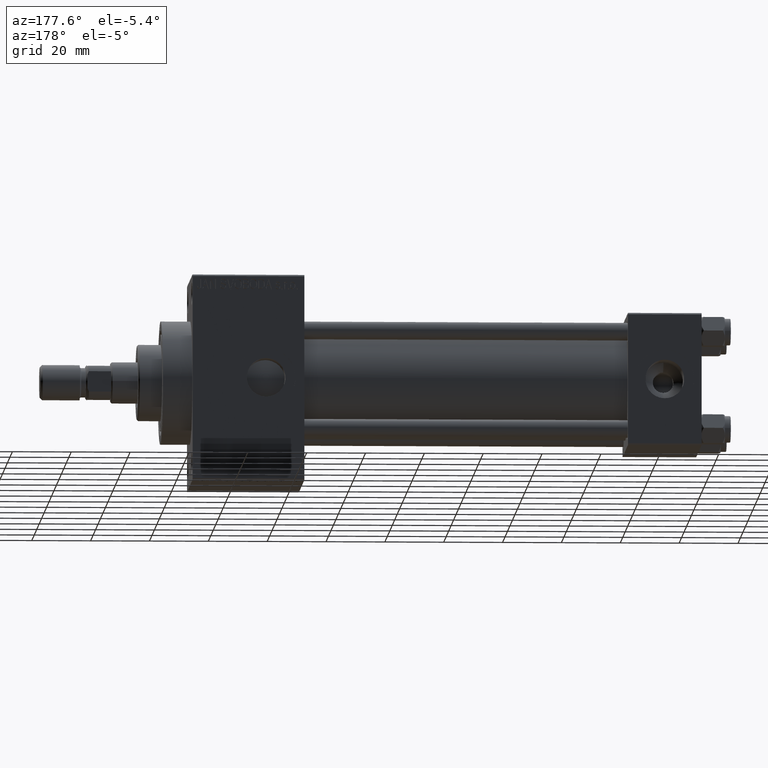
[diagram: clean part render]
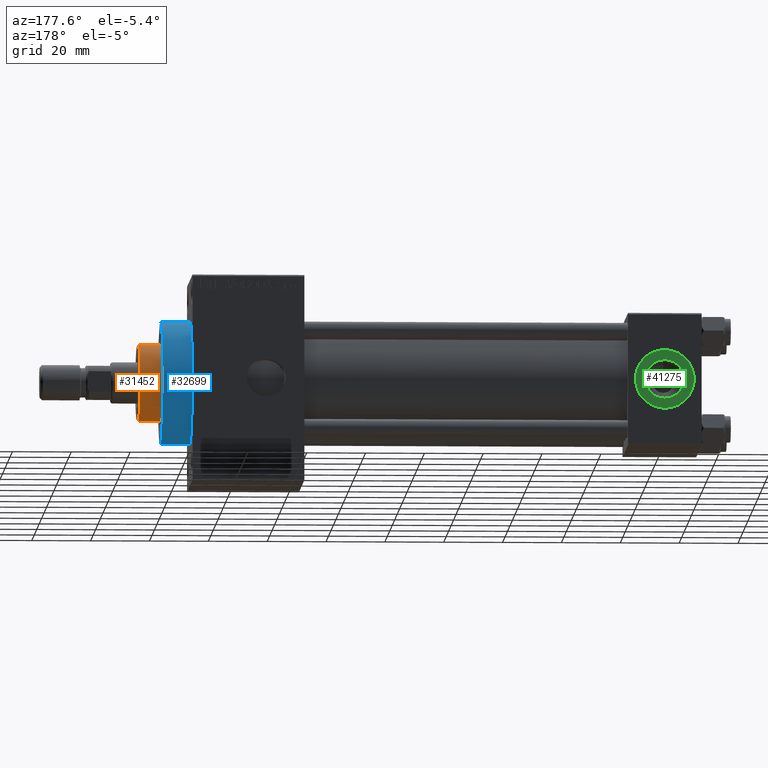
[diagram: same view with three faces highlighted in distinct colors, each labeled with its STEP entity id]
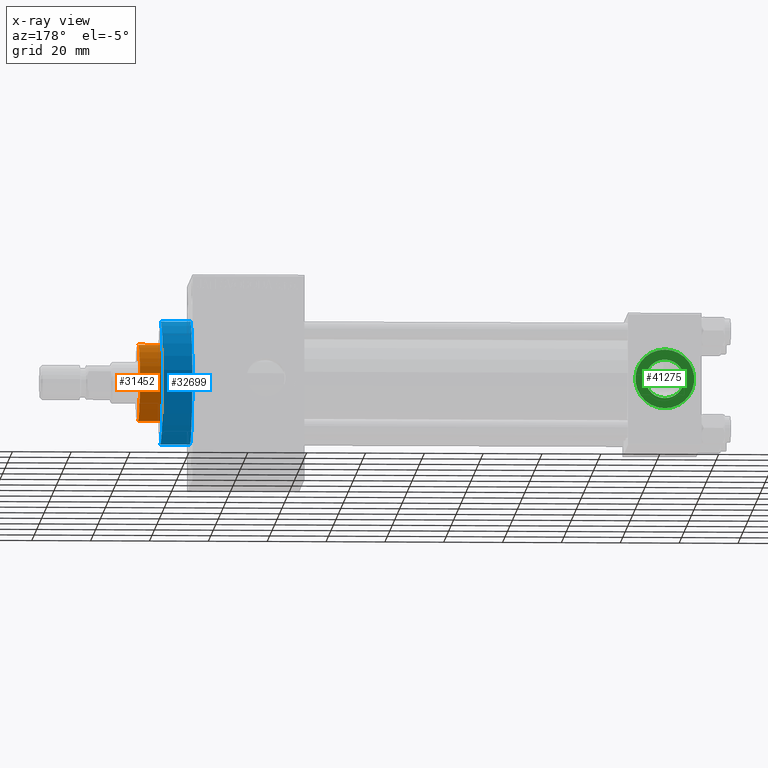
[diagram: x-ray of the same camera — body ghosted, the three highlighted faces saturated]
A machine part, auxiliary view with three faces highlighted in distinct colors.
The next image is the same camera in x-ray (body ghosted, the three faces saturated) — at least one of them is partly hidden behind the body in this view.
Their STEP definitions:

[orange] entity #31452 — the highlighted cylindrical surface (partial cylindrical patch) has radius 13 mm, axis along (-1, 0, 0).
#1485 = LINE ( 'NONE', #35322, #17861 ) ;
#4334 = CARTESIAN_POINT ( 'NONE',  ( 13.00000000000000178, 1.592040838891559293E-15, 51.25999999999999801 ) ) ;
#4751 = AXIS2_PLACEMENT_3D ( 'NONE', #12303, #26810, #42270 ) ;
#4958 = DIRECTION ( 'NONE',  ( -0.000000000000000000, -0.000000000000000000, -1.000000000000000000 ) ) ;
#7844 = EDGE_CURVE ( 'NONE', #42689, #37388, #12053, .T. ) ;
#8588 = DIRECTION ( 'NONE',  ( -1.000000000000000000, 0.000000000000000000, 0.000000000000000000 ) ) ;
#10431 = VERTEX_POINT ( 'NONE', #19446 ) ;
#12053 = LINE ( 'NONE', #4334, #17579 ) ;
#12303 = CARTESIAN_POINT ( 'NONE',  ( 0.000000000000000000, 0.000000000000000000, 50.75999999999997669 ) ) ;
#12323 = EDGE_CURVE ( 'NONE', #10431, #47130, #1485, .T. ) ;
#12366 = ORIENTED_EDGE ( 'NONE', *, *, #12597, .T. ) ;
#12597 = EDGE_CURVE ( 'NONE', #42689, #10431, #15562, .T. ) ;
#13092 = AXIS2_PLACEMENT_3D ( 'NONE', #13095, #46222, #27841 ) ;
#13095 = CARTESIAN_POINT ( 'NONE',  ( 0.000000000000000000, 0.000000000000000000, 43.25999999999999801 ) ) ;
#15562 = CIRCLE ( 'NONE', #4751, 13.00000000000000178 ) ;
#17579 = VECTOR ( 'NONE', #34070, 1000.000000000000000 ) ;
#17861 = VECTOR ( 'NONE', #27821, 1000.000000000000000 ) ;
#18301 = ORIENTED_EDGE ( 'NONE', *, *, #7844, .F. ) ;
#18989 = CARTESIAN_POINT ( 'NONE',  ( 0.000000000000000000, 0.000000000000000000, 51.25999999999999801 ) ) ;
#19446 = CARTESIAN_POINT ( 'NONE',  ( -13.00000000000000178, 0.000000000000000000, 50.75999999999997669 ) ) ;
#24182 = CARTESIAN_POINT ( 'NONE',  ( 13.00000000000000178, 1.592040838891559293E-15, 43.25999999999999801 ) ) ;
#25142 = ORIENTED_EDGE ( 'NONE', *, *, #30733, .T. ) ;
#25770 = CARTESIAN_POINT ( 'NONE',  ( -13.00000000000000178, 0.000000000000000000, 43.25999999999999801 ) ) ;
#26810 = DIRECTION ( 'NONE',  ( 0.000000000000000000, 0.000000000000000000, -1.000000000000000000 ) ) ;
#27821 = DIRECTION ( 'NONE',  ( -0.000000000000000000, -0.000000000000000000, -1.000000000000000000 ) ) ;
#27841 = DIRECTION ( 'NONE',  ( 1.000000000000000000, 0.000000000000000000, 0.000000000000000000 ) ) ;
#29710 = EDGE_LOOP ( 'NONE', ( #18301, #12366, #46624, #25142 ) ) ;
#30733 = EDGE_CURVE ( 'NONE', #47130, #37388, #34703, .T. ) ;
#31452 = ADVANCED_FACE ( 'NONE', ( #41473 ), #41709, .T. ) ;
#34070 = DIRECTION ( 'NONE',  ( -0.000000000000000000, -0.000000000000000000, -1.000000000000000000 ) ) ;
#34703 = CIRCLE ( 'NONE', #13092, 13.00000000000000178 ) ;
#35322 = CARTESIAN_POINT ( 'NONE',  ( -13.00000000000000178, 0.000000000000000000, 51.25999999999999801 ) ) ;
#35506 = AXIS2_PLACEMENT_3D ( 'NONE', #18989, #4958, #8588 ) ;
#35850 = CARTESIAN_POINT ( 'NONE',  ( 13.00000000000000178, 1.592040838891559293E-15, 50.75999999999997669 ) ) ;
#37388 = VERTEX_POINT ( 'NONE', #24182 ) ;
#41473 = FACE_OUTER_BOUND ( 'NONE', #29710, .T. ) ;
#41709 = CYLINDRICAL_SURFACE ( 'NONE', #35506, 13.00000000000000178 ) ;
#42270 = DIRECTION ( 'NONE',  ( 1.000000000000000000, 0.000000000000000000, 0.000000000000000000 ) ) ;
#42689 = VERTEX_POINT ( 'NONE', #35850 ) ;
#46222 = DIRECTION ( 'NONE',  ( 0.000000000000000000, 0.000000000000000000, 1.000000000000000000 ) ) ;
#46624 = ORIENTED_EDGE ( 'NONE', *, *, #12323, .T. ) ;
#47130 = VERTEX_POINT ( 'NONE', #25770 ) ;

[blue] entity #32699 — the highlighted cylindrical surface (partial cylindrical patch) has radius 21 mm, axis along (-1, -0, -0).
#147 = EDGE_CURVE ( 'NONE', #37056, #34471, #30588, .T. ) ;
#369 = CARTESIAN_POINT ( 'NONE',  ( 183.0000000000000284, 0.000000000000000000, 0.000000000000000000 ) ) ;
#446 = DIRECTION ( 'NONE',  ( 1.000000000000000000, 0.000000000000000000, 0.000000000000000000 ) ) ;
#1401 = DIRECTION ( 'NONE',  ( -1.000000000000000000, -0.000000000000000000, -0.000000000000000000 ) ) ;
#2301 = EDGE_CURVE ( 'NONE', #27537, #37016, #35280, .T. ) ;
#6101 = LINE ( 'NONE', #16984, #44452 ) ;
#9637 = ORIENTED_EDGE ( 'NONE', *, *, #19905, .T. ) ;
#12536 = EDGE_LOOP ( 'NONE', ( #14985, #9637, #38747, #25741 ) ) ;
#14049 = DIRECTION ( 'NONE',  ( 0.000000000000000000, 0.000000000000000000, -1.000000000000000000 ) ) ;
#14985 = ORIENTED_EDGE ( 'NONE', *, *, #2301, .F. ) ;
#16750 = AXIS2_PLACEMENT_3D ( 'NONE', #18143, #25154, #14049 ) ;
#16984 = CARTESIAN_POINT ( 'NONE',  ( 183.0000000000000284, 2.571758278209441661E-15, -21.00000000000000000 ) ) ;
#18143 = CARTESIAN_POINT ( 'NONE',  ( 183.0000000000000284, 0.000000000000000000, 0.000000000000000000 ) ) ;
#19905 = EDGE_CURVE ( 'NONE', #27537, #37056, #6101, .T. ) ;
#20760 = AXIS2_PLACEMENT_3D ( 'NONE', #369, #26239, #25274 ) ;
#21950 = CARTESIAN_POINT ( 'NONE',  ( 173.0000000000000284, 0.000000000000000000, 21.00000000000000000 ) ) ;
#22106 = CARTESIAN_POINT ( 'NONE',  ( 183.0000000000000284, 0.000000000000000000, 21.00000000000000000 ) ) ;
#22445 = CARTESIAN_POINT ( 'NONE',  ( 173.0000000000000284, 0.000000000000000000, 0.000000000000000000 ) ) ;
#25154 = DIRECTION ( 'NONE',  ( 1.000000000000000000, 0.000000000000000000, 0.000000000000000000 ) ) ;
#25274 = DIRECTION ( 'NONE',  ( 0.000000000000000000, 0.000000000000000000, 1.000000000000000000 ) ) ;
#25741 = ORIENTED_EDGE ( 'NONE', *, *, #26670, .F. ) ;
#26239 = DIRECTION ( 'NONE',  ( -1.000000000000000000, -0.000000000000000000, -0.000000000000000000 ) ) ;
#26670 = EDGE_CURVE ( 'NONE', #37016, #34471, #38138, .T. ) ;
#27537 = VERTEX_POINT ( 'NONE', #36796 ) ;
#29839 = AXIS2_PLACEMENT_3D ( 'NONE', #22445, #446, #37425 ) ;
#30547 = CARTESIAN_POINT ( 'NONE',  ( 173.0000000000000284, 2.571758278209441661E-15, -21.00000000000000000 ) ) ;
#30588 = CIRCLE ( 'NONE', #29839, 21.00000000000000000 ) ;
#31533 = VECTOR ( 'NONE', #1401, 1000.000000000000000 ) ;
#31613 = CARTESIAN_POINT ( 'NONE',  ( 183.0000000000000284, 0.000000000000000000, 21.00000000000000000 ) ) ;
#31726 = DIRECTION ( 'NONE',  ( -1.000000000000000000, -0.000000000000000000, -0.000000000000000000 ) ) ;
#32699 = ADVANCED_FACE ( 'NONE', ( #43900 ), #37354, .T. ) ;
#34471 = VERTEX_POINT ( 'NONE', #21950 ) ;
#35280 = CIRCLE ( 'NONE', #16750, 21.00000000000000000 ) ;
#36796 = CARTESIAN_POINT ( 'NONE',  ( 183.0000000000000284, 2.571758278209441661E-15, -21.00000000000000000 ) ) ;
#37016 = VERTEX_POINT ( 'NONE', #22106 ) ;
#37056 = VERTEX_POINT ( 'NONE', #30547 ) ;
#37354 = CYLINDRICAL_SURFACE ( 'NONE', #20760, 21.00000000000000000 ) ;
#37425 = DIRECTION ( 'NONE',  ( 0.000000000000000000, 0.000000000000000000, -1.000000000000000000 ) ) ;
#38138 = LINE ( 'NONE', #31613, #31533 ) ;
#38747 = ORIENTED_EDGE ( 'NONE', *, *, #147, .T. ) ;
#43900 = FACE_OUTER_BOUND ( 'NONE', #12536, .T. ) ;
#44452 = VECTOR ( 'NONE', #31726, 1000.000000000000000 ) ;

[green] entity #41275 — the highlighted planar face has unit normal (0, 1, 0).
#961 = EDGE_LOOP ( 'NONE', ( #9779, #31208 ) ) ;
#4906 = EDGE_CURVE ( 'NONE', #18008, #25945, #6815, .T. ) ;
#5674 = CARTESIAN_POINT ( 'NONE',  ( 12.50000000000000000, 22.30000000000000071, 6.579999999999998295 ) ) ;
#6143 = ORIENTED_EDGE ( 'NONE', *, *, #35860, .F. ) ;
#6695 = DIRECTION ( 'NONE',  ( 0.000000000000000000, 1.000000000000000000, 0.000000000000000000 ) ) ;
#6815 = CIRCLE ( 'NONE', #25307, 9.999999999999996447 ) ;
#7683 = EDGE_CURVE ( 'NONE', #27487, #34872, #37660, .T. ) ;
#8744 = CIRCLE ( 'NONE', #33475, 9.999999999999996447 ) ;
#9779 = ORIENTED_EDGE ( 'NONE', *, *, #42859, .T. ) ;
#9809 = PLANE ( 'NONE',  #43427 ) ;
#10390 = DIRECTION ( 'NONE',  ( 0.000000000000000000, 1.000000000000000000, 0.000000000000000000 ) ) ;
#10456 = CARTESIAN_POINT ( 'NONE',  ( 12.50000000000000000, 22.30000000000000071, -6.579999999999998295 ) ) ;
#12242 = DIRECTION ( 'NONE',  ( 0.000000000000000000, 0.000000000000000000, 1.000000000000000000 ) ) ;
#16814 = DIRECTION ( 'NONE',  ( 0.000000000000000000, 1.000000000000000000, 0.000000000000000000 ) ) ;
#16816 = AXIS2_PLACEMENT_3D ( 'NONE', #39897, #10390, #32639 ) ;
#18008 = VERTEX_POINT ( 'NONE', #22139 ) ;
#18125 = DIRECTION ( 'NONE',  ( 0.000000000000000000, 0.000000000000000000, 1.000000000000000000 ) ) ;
#20684 = FACE_BOUND ( 'NONE', #44282, .T. ) ;
#21896 = CARTESIAN_POINT ( 'NONE',  ( 12.50000000000000000, 22.30000000000000071, 9.999999999999996447 ) ) ;
#22139 = CARTESIAN_POINT ( 'NONE',  ( 12.50000000000000178, 22.30000000000000071, -9.999999999999996447 ) ) ;
#25307 = AXIS2_PLACEMENT_3D ( 'NONE', #41738, #41043, #12242 ) ;
#25945 = VERTEX_POINT ( 'NONE', #21896 ) ;
#27487 = VERTEX_POINT ( 'NONE', #10456 ) ;
#29614 = ORIENTED_EDGE ( 'NONE', *, *, #7683, .F. ) ;
#31208 = ORIENTED_EDGE ( 'NONE', *, *, #4906, .T. ) ;
#32042 = FACE_OUTER_BOUND ( 'NONE', #961, .T. ) ;
#32639 = DIRECTION ( 'NONE',  ( 0.000000000000000000, 0.000000000000000000, 1.000000000000000000 ) ) ;
#32799 = CARTESIAN_POINT ( 'NONE',  ( 12.50000000000000000, 22.30000000000000071, 0.000000000000000000 ) ) ;
#33475 = AXIS2_PLACEMENT_3D ( 'NONE', #47165, #40148, #18125 ) ;
#34023 = AXIS2_PLACEMENT_3D ( 'NONE', #32799, #6695, #47546 ) ;
#34872 = VERTEX_POINT ( 'NONE', #5674 ) ;
#35860 = EDGE_CURVE ( 'NONE', #34872, #27487, #45574, .T. ) ;
#37660 = CIRCLE ( 'NONE', #16816, 6.579999999999998295 ) ;
#38818 = DIRECTION ( 'NONE',  ( 0.000000000000000000, -0.000000000000000000, 1.000000000000000000 ) ) ;
#39897 = CARTESIAN_POINT ( 'NONE',  ( 12.50000000000000000, 22.30000000000000071, 0.000000000000000000 ) ) ;
#40148 = DIRECTION ( 'NONE',  ( 0.000000000000000000, 1.000000000000000000, 0.000000000000000000 ) ) ;
#41043 = DIRECTION ( 'NONE',  ( 0.000000000000000000, 1.000000000000000000, 0.000000000000000000 ) ) ;
#41275 = ADVANCED_FACE ( 'NONE', ( #20684, #32042 ), #9809, .T. ) ;
#41738 = CARTESIAN_POINT ( 'NONE',  ( 12.50000000000000000, 22.30000000000000071, 0.000000000000000000 ) ) ;
#42859 = EDGE_CURVE ( 'NONE', #25945, #18008, #8744, .T. ) ;
#43427 = AXIS2_PLACEMENT_3D ( 'NONE', #46069, #16814, #38818 ) ;
#44282 = EDGE_LOOP ( 'NONE', ( #6143, #29614 ) ) ;
#45574 = CIRCLE ( 'NONE', #34023, 6.579999999999998295 ) ;
#46069 = CARTESIAN_POINT ( 'NONE',  ( 12.50000000000000000, 22.30000000000000071, 0.000000000000000000 ) ) ;
#47165 = CARTESIAN_POINT ( 'NONE',  ( 12.50000000000000000, 22.30000000000000071, 0.000000000000000000 ) ) ;
#47546 = DIRECTION ( 'NONE',  ( 0.000000000000000000, 0.000000000000000000, 1.000000000000000000 ) ) ;